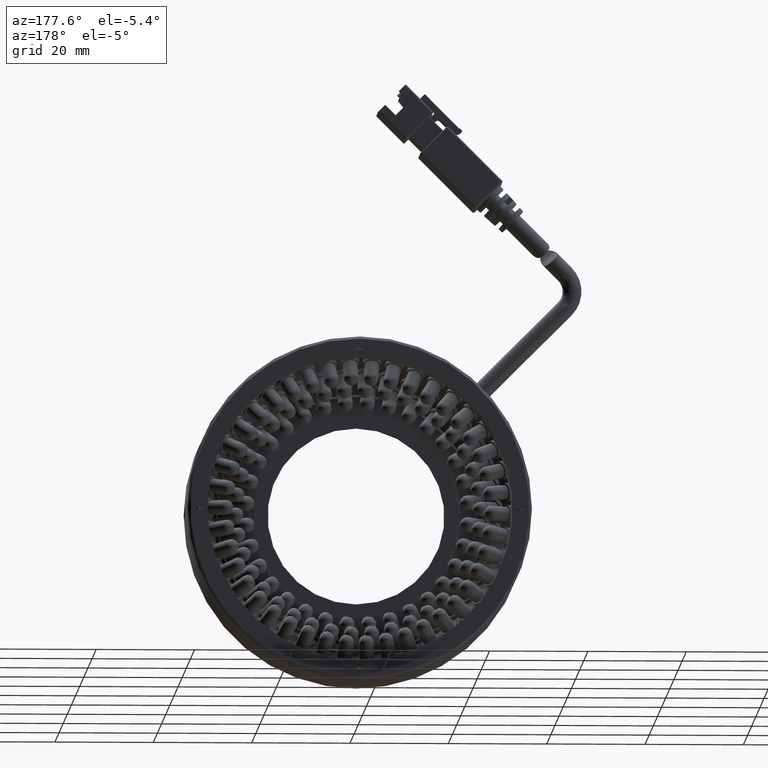
[diagram: clean part render]
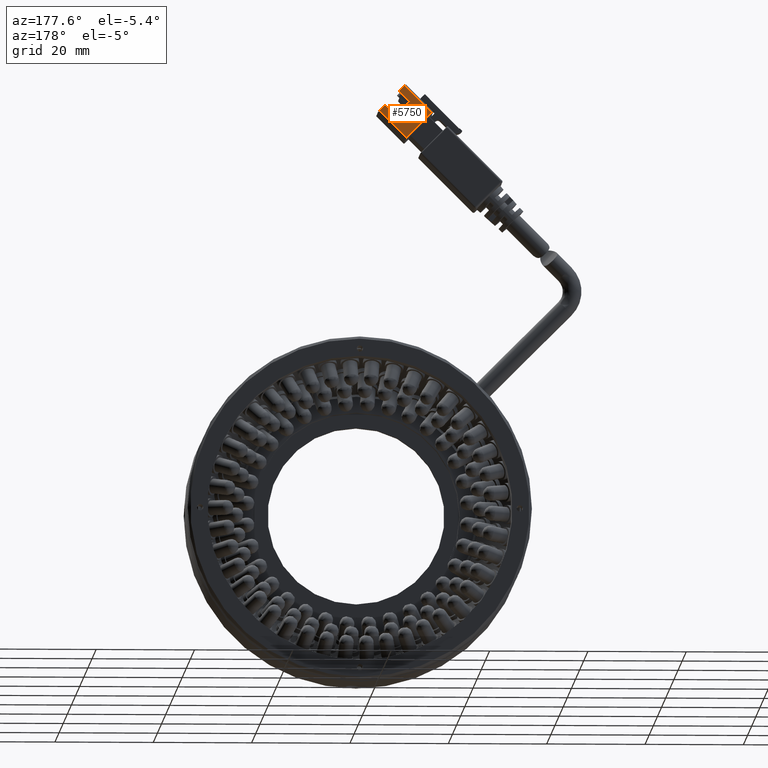
[diagram: same view with one face highlighted and labeled with its STEP entity id]
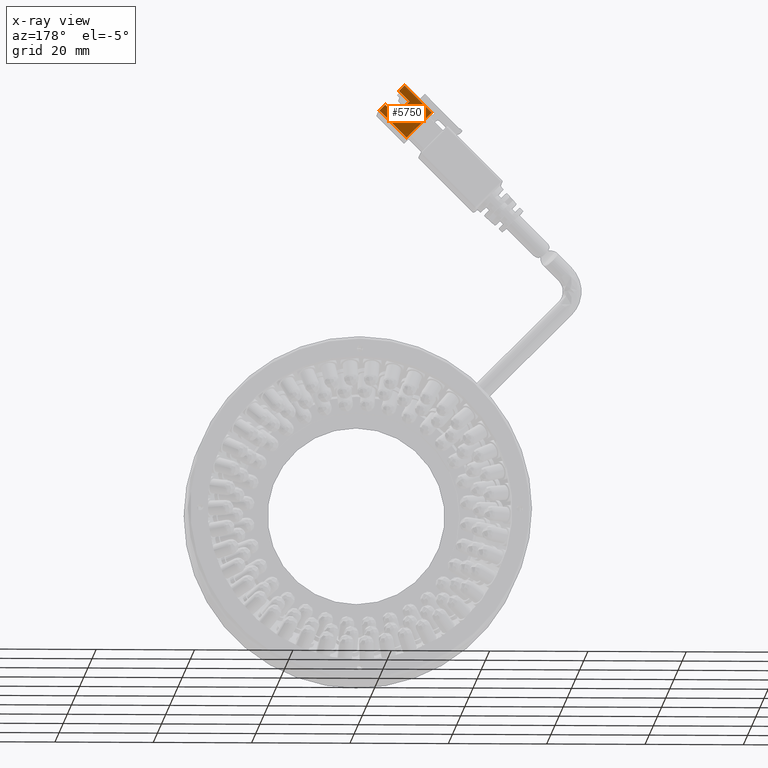
[diagram: x-ray of the same camera — body ghosted, the highlighted face saturated]
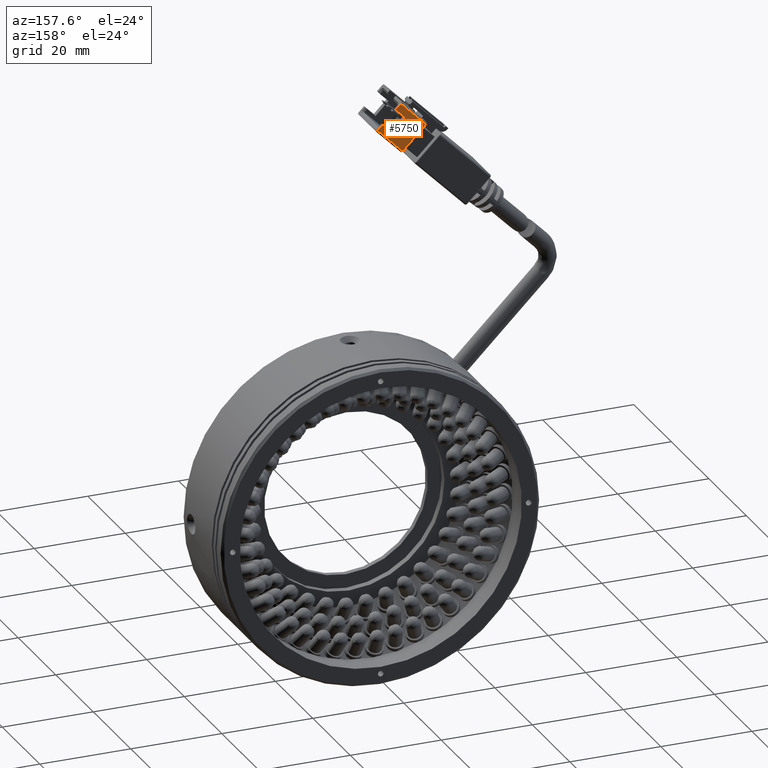
[diagram: same view with one face highlighted and labeled with its STEP entity id]
A machine part, auxiliary view. The second image highlights one B-rep face of the part: STEP entity #5750.
The next image is the same camera in x-ray: the body ghosted, the highlighted face saturated — about 0% of this face is hidden behind the body in this view.
A second angle (auxiliary view) of the same face is appended — the face is thin or edge-on in the first view.
In plain terms, the highlighted planar face has unit normal (0, -1, 0).
Its self-contained STEP definition (entity closure, byte-faithful):
#128 = AXIS2_PLACEMENT_3D ( 'NONE', #68700, #68362, #66086 ) ;
#862 = CARTESIAN_POINT ( 'NONE',  ( -52.35584867777647100, -18.18693679055955000, 68.78053977644721300 ) ) ;
#3263 = LINE ( 'NONE', #17988, #22209 ) ;
#5750 = ADVANCED_FACE ( 'NONE', ( #61072 ), #77156, .F. ) ;
#7344 = ORIENTED_EDGE ( 'NONE', *, *, #20111, .F. ) ;
#9098 = CARTESIAN_POINT ( 'NONE',  ( -47.12325849699598700, -18.18693679055955000, 74.57881538217688400 ) ) ;
#9874 = DIRECTION ( 'NONE',  ( 0.7071067811865512400, 2.404204077359530700E-016, 0.7071067811865439100 ) ) ;
#9895 = LINE ( 'NONE', #9098, #92952 ) ;
#10185 = CARTESIAN_POINT ( 'NONE',  ( -46.84041578452137600, -18.18693679055955000, 74.29597266970225200 ) ) ;
#12620 = VECTOR ( 'NONE', #67382, 999.9999999999998900 ) ;
#14454 = LINE ( 'NONE', #56581, #97493 ) ;
#14605 = CARTESIAN_POINT ( 'NONE',  ( -41.74924695997825100, -18.18693679055955000, 69.20480384515909100 ) ) ;
#14904 = CARTESIAN_POINT ( 'NONE',  ( -43.58772459106329200, -18.18693679055955000, 66.80064078912484100 ) ) ;
#17249 = DIRECTION ( 'NONE',  ( -0.7071067811865439100, -4.906538933385555600E-018, 0.7071067811865512400 ) ) ;
#17988 = CARTESIAN_POINT ( 'NONE',  ( -45.70904493462289500, -18.18693679055955000, 73.16460181980377800 ) ) ;
#19296 = CARTESIAN_POINT ( 'NONE',  ( -46.84041578452137600, -18.18693679055955000, 74.29597266970225200 ) ) ;
#20111 = EDGE_CURVE ( 'NONE', #30279, #21541, #33889, .T. ) ;
#20787 = LINE ( 'NONE', #60447, #82385 ) ;
#21541 = VERTEX_POINT ( 'NONE', #10185 ) ;
#21775 = EDGE_CURVE ( 'NONE', #83440, #37884, #20787, .T. ) ;
#22209 = VECTOR ( 'NONE', #9874, 999.9999999999998900 ) ;
#26064 = EDGE_CURVE ( 'NONE', #70481, #30279, #3263, .T. ) ;
#28853 = VECTOR ( 'NONE', #55365, 999.9999999999998900 ) ;
#30279 = VERTEX_POINT ( 'NONE', #32250 ) ;
#32250 = CARTESIAN_POINT ( 'NONE',  ( -45.70904493462289500, -18.18693679055955000, 73.16460181980377800 ) ) ;
#33889 = LINE ( 'NONE', #62734, #28853 ) ;
#37816 = ORIENTED_EDGE ( 'NONE', *, *, #45018, .F. ) ;
#37884 = VERTEX_POINT ( 'NONE', #92288 ) ;
#44718 = EDGE_CURVE ( 'NONE', #55300, #67616, #14454, .T. ) ;
#45018 = EDGE_CURVE ( 'NONE', #37884, #72557, #89736, .T. ) ;
#47334 = ORIENTED_EDGE ( 'NONE', *, *, #47685, .F. ) ;
#47685 = EDGE_CURVE ( 'NONE', #67616, #70481, #79965, .T. ) ;
#49734 = ORIENTED_EDGE ( 'NONE', *, *, #26064, .F. ) ;
#50393 = EDGE_CURVE ( 'NONE', #72557, #55300, #9895, .T. ) ;
#55300 = VERTEX_POINT ( 'NONE', #82025 ) ;
#55340 = DIRECTION ( 'NONE',  ( -0.7071067811865439100, -4.906538933385555600E-018, 0.7071067811865512400 ) ) ;
#55365 = DIRECTION ( 'NONE',  ( -0.7071067811865439100, -4.906538933385555600E-018, 0.7071067811865512400 ) ) ;
#56581 = CARTESIAN_POINT ( 'NONE',  ( -42.88061780987673200, -18.18693679055955000, 70.33617469505756500 ) ) ;
#60447 = CARTESIAN_POINT ( 'NONE',  ( -46.98183714075873500, -18.18693679055955300, 63.40652823942942700 ) ) ;
#60905 = CARTESIAN_POINT ( 'NONE',  ( -45.00193815343637700, -18.18693679055955000, 68.21485435149793400 ) ) ;
#61072 = FACE_OUTER_BOUND ( 'NONE', #88245, .T. ) ;
#62734 = CARTESIAN_POINT ( 'NONE',  ( -41.46640424750364000, -18.18693679055955000, 68.92196113268445900 ) ) ;
#66086 = DIRECTION ( 'NONE',  ( 0.7071067811865439100, 4.906538933385555600E-018, -0.7071067811865512400 ) ) ;
#67382 = DIRECTION ( 'NONE',  ( -0.7071067811865512400, -2.404204077359530700E-016, -0.7071067811865439100 ) ) ;
#67616 = VERTEX_POINT ( 'NONE', #60905 ) ;
#68301 = VECTOR ( 'NONE', #78970, 999.9999999999998900 ) ;
#68362 = DIRECTION ( 'NONE',  ( 1.734723475976807300E-016, -1.000000000000000000, 1.665334536937734800E-016 ) ) ;
#68700 = CARTESIAN_POINT ( 'NONE',  ( -41.46640424750364000, -18.18693679055955000, 68.92196113268445900 ) ) ;
#70481 = VERTEX_POINT ( 'NONE', #92900 ) ;
#72172 = EDGE_CURVE ( 'NONE', #21541, #83440, #95633, .T. ) ;
#72557 = VERTEX_POINT ( 'NONE', #77335 ) ;
#74867 = VECTOR ( 'NONE', #55340, 999.9999999999998900 ) ;
#76849 = ORIENTED_EDGE ( 'NONE', *, *, #44718, .F. ) ;
#77156 = PLANE ( 'NONE',  #128 ) ;
#77335 = CARTESIAN_POINT ( 'NONE',  ( -41.74924695997825100, -18.18693679055955000, 69.20480384515909100 ) ) ;
#78970 = DIRECTION ( 'NONE',  ( 0.7071067811865512400, 2.404204077359530700E-016, 0.7071067811865439100 ) ) ;
#79965 = LINE ( 'NONE', #14904, #74867 ) ;
#81232 = ORIENTED_EDGE ( 'NONE', *, *, #50393, .F. ) ;
#81561 = ORIENTED_EDGE ( 'NONE', *, *, #21775, .F. ) ;
#82025 = CARTESIAN_POINT ( 'NONE',  ( -42.88061780987673200, -18.18693679055955000, 70.33617469505756500 ) ) ;
#82385 = VECTOR ( 'NONE', #101233, 999.9999999999998900 ) ;
#83440 = VERTEX_POINT ( 'NONE', #862 ) ;
#88245 = EDGE_LOOP ( 'NONE', ( #81561, #98756, #7344, #49734, #47334, #76849, #81232, #37816 ) ) ;
#89736 = LINE ( 'NONE', #14605, #68301 ) ;
#92288 = CARTESIAN_POINT ( 'NONE',  ( -47.26467985323335300, -18.18693679055955300, 63.68937095190405300 ) ) ;
#92900 = CARTESIAN_POINT ( 'NONE',  ( -47.83036527818254800, -18.18693679055955000, 71.04328147624414700 ) ) ;
#92952 = VECTOR ( 'NONE', #17249, 999.9999999999998900 ) ;
#95633 = LINE ( 'NONE', #19296, #12620 ) ;
#96630 = DIRECTION ( 'NONE',  ( -0.7071067811865512400, -2.404204077359530700E-016, -0.7071067811865439100 ) ) ;
#97493 = VECTOR ( 'NONE', #96630, 999.9999999999998900 ) ;
#98756 = ORIENTED_EDGE ( 'NONE', *, *, #72172, .F. ) ;
#101233 = DIRECTION ( 'NONE',  ( 0.7071067811865439100, 4.906538933385555600E-018, -0.7071067811865512400 ) ) ;